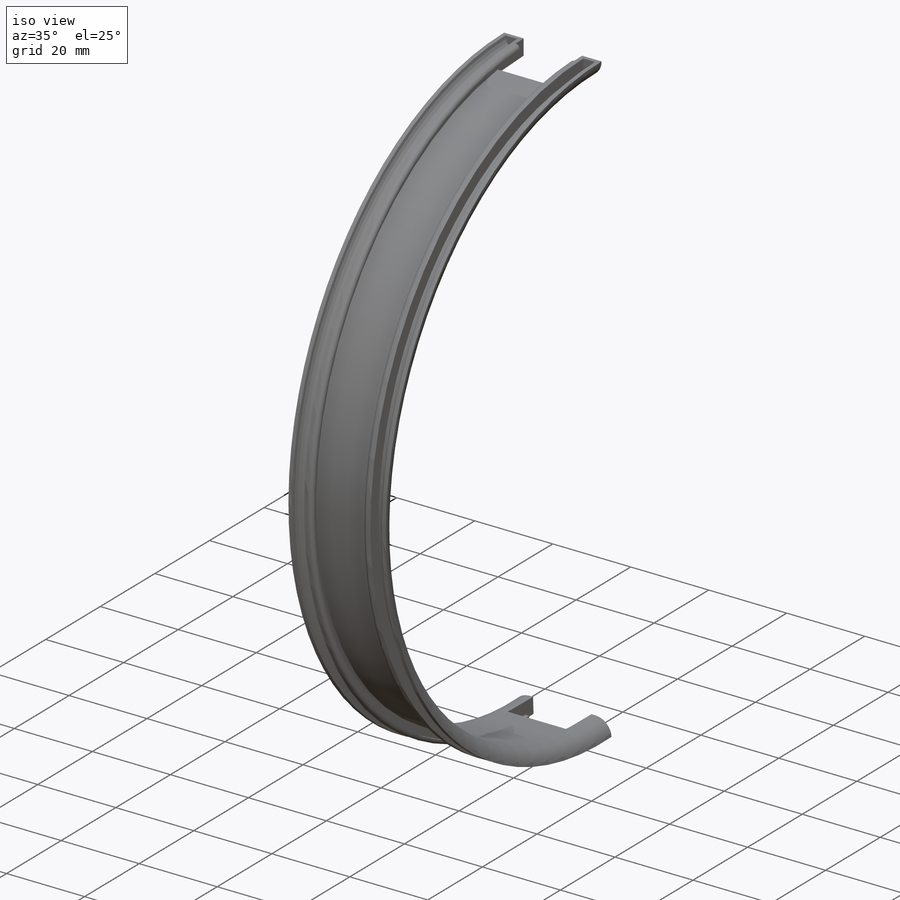
[diagram: iso view]
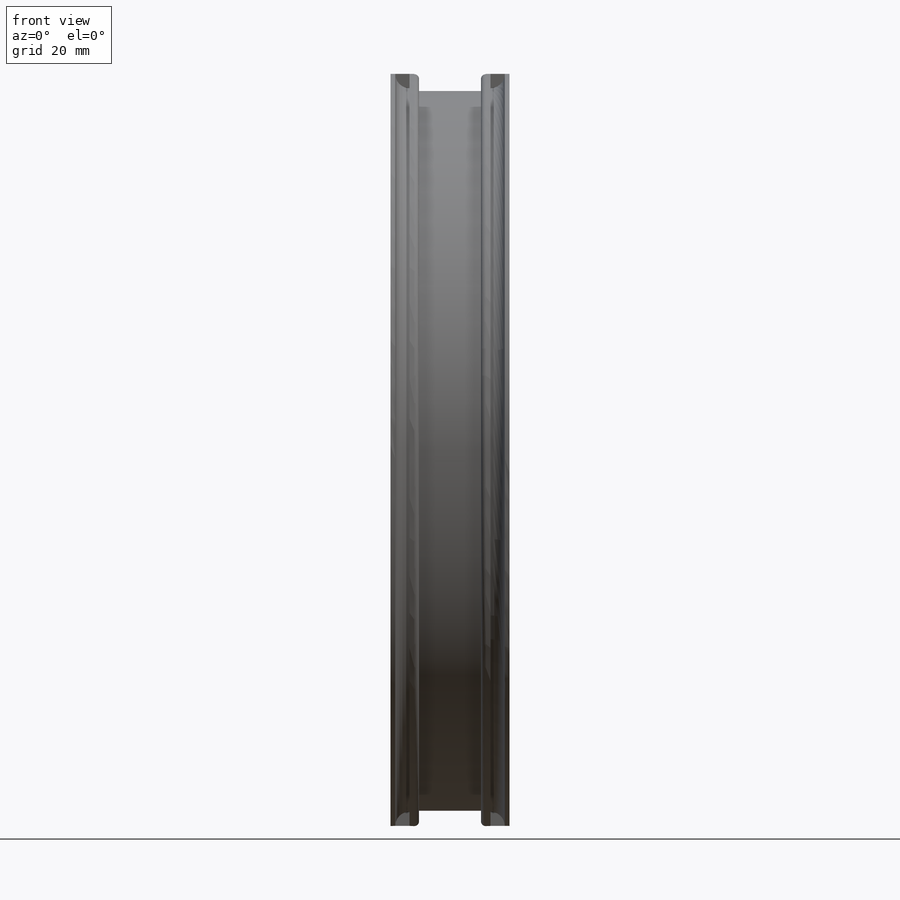
[diagram: front view]
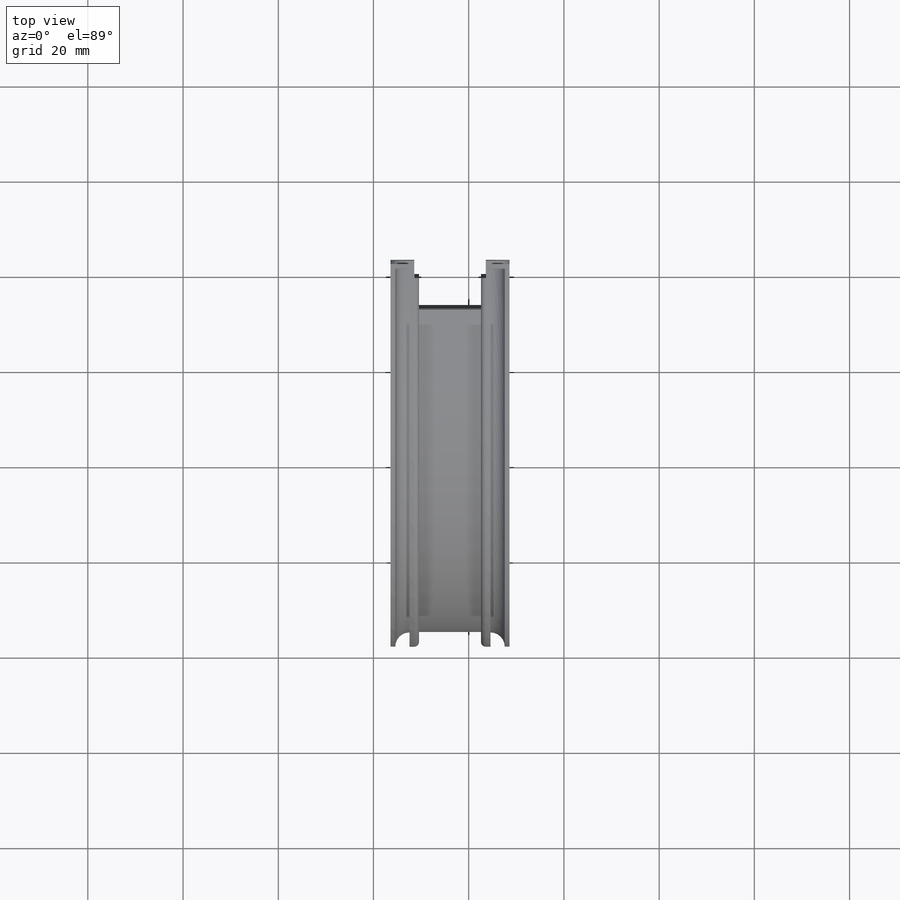
[diagram: top view]
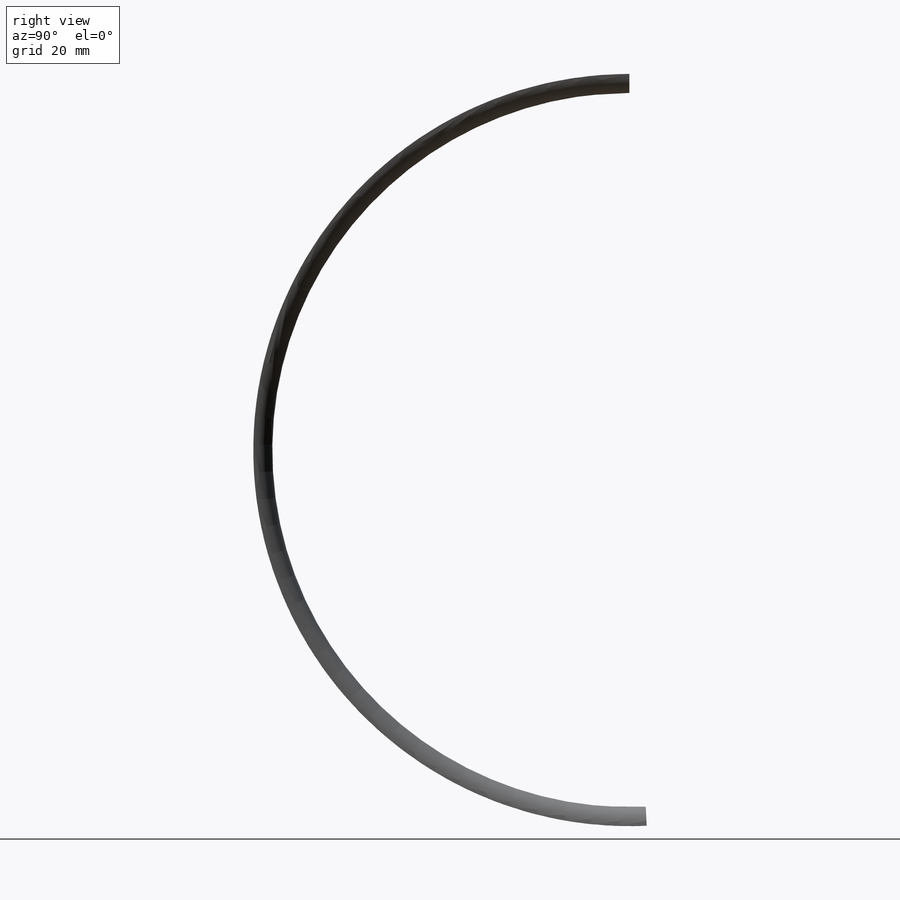
[diagram: right view]
SOLIDWORKS PART (.sldprt)
format: sldprt  version: not decoded by parser v0  size: 419,840 bytes
history: native  units: mm
features: sketch x7, cut_revolve x4, plane x3, revolve x3, material x1 (+9 scaffold rows collapsed)
feature tree (27):
  scaffold x9  (default folders/planes/origin — collapsed)
  material  "Material <sin especificar>"
  plane  "Alzado"
  plane  "Planta"
  plane  "Vista lateral"
  sketch  "Croquis1"  dims[D1=25.0mm D2=4.0mm D3=1.0mm D4=1.0mm D5=1.0mm D6=5.0mm D7=5.0mm D8=1.0mm D9=1.0mm D10=1.0mm D11=1.0mm D12=1.0mm D13=1.0mm D14=79.0mm]
  revolve  "Revolución1"  Angle=182.630247deg
  sketch  "Croquis2"  dims[D1=79.0mm]
  revolve  "Revolución2"  Angle=0.72deg
  sketch  "Croquis3"  dims[D1=79.0mm]
  revolve  "Revolución3"  Angle=0.72deg
  sketch  "Croquis4"  dims[D1=79.0mm]
  cut_revolve  "Cortar-Revolución3"  Angle=7.16deg
  sketch  "Croquis5"  dims[D1=79.0mm]
  cut_revolve  "Cortar-Revolución4"  Angle=7.16deg
  sketch  "Croquis6"  dims[D1=79.0mm]
  cut_revolve  "Cortar-Revolución5"  Angle=2.15deg
  sketch  "Croquis7"  dims[D1=79.0mm]
  cut_revolve  "Cortar-Revolución6"  Angle=2.15deg
decode coverage: 14 of 14 modeling features carry decoded parameters
note: suppression state not decoded; provenance and decode notes live in map.json
